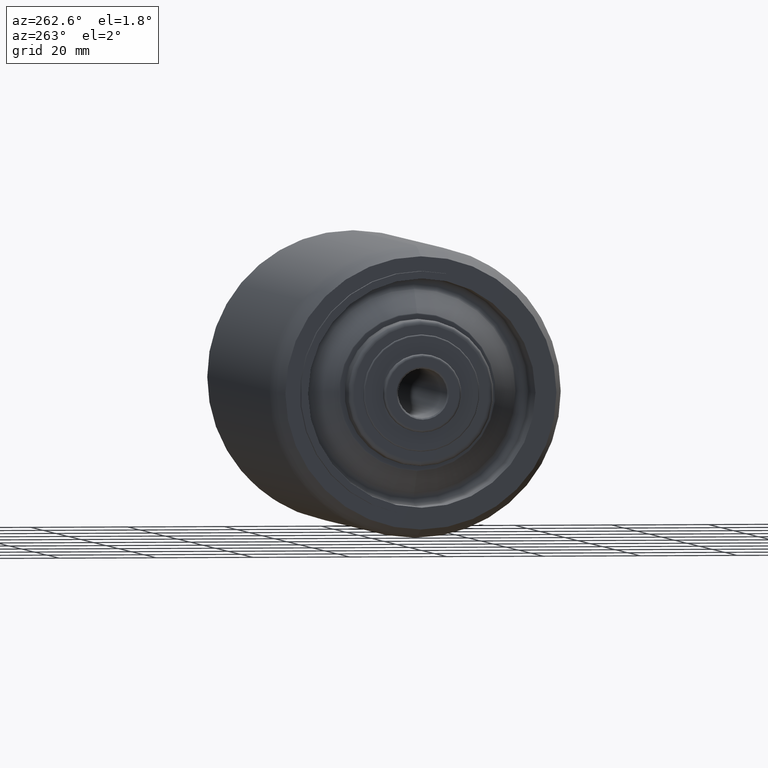
[diagram: clean part render]
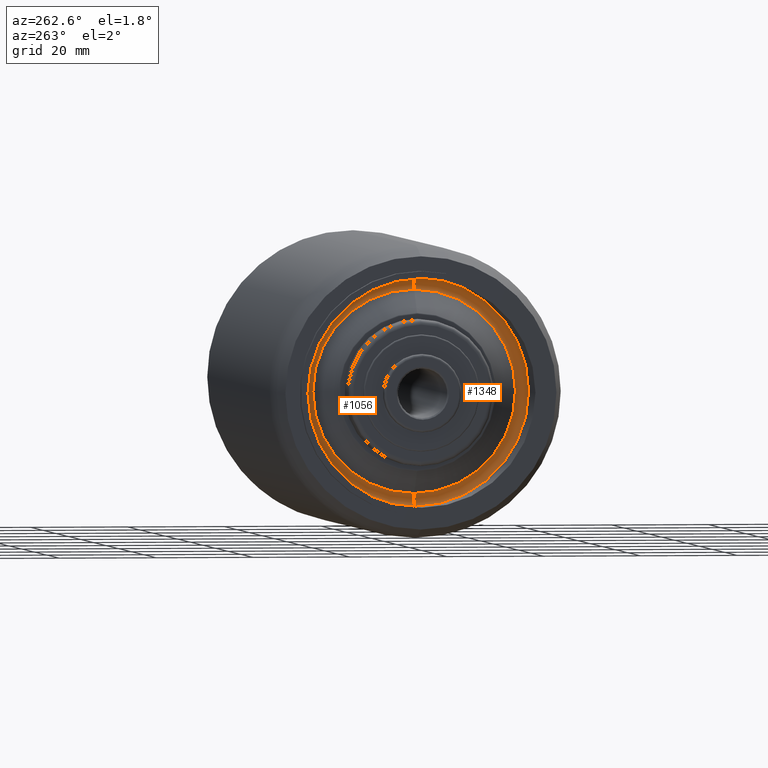
[diagram: same view with one multi-face feature highlighted, each face labeled with its STEP entity id]
A machine part, auxiliary view. The highlighted faces form ONE feature: a constant-radius fillet chain: 2 tangent blend faces with common blend radius 1.5 mm. The faces share edges in the B-rep.
Their STEP definitions:
[1] entity #1348 (Torus):
#23 = EDGE_LOOP ( 'NONE', ( #707, #1121, #1264, #1576 ) ) ;
#52 = DIRECTION ( 'NONE',  ( 0.0000000000000000000, 0.0000000000000000000, 1.000000000000000000 ) ) ;
#80 = AXIS2_PLACEMENT_3D ( 'NONE', #1416, #516, #1385 ) ;
#159 = AXIS2_PLACEMENT_3D ( 'NONE', #961, #1855, #966 ) ;
#175 = AXIS2_PLACEMENT_3D ( 'NONE', #1286, #661, #1274 ) ;
#218 = DIRECTION ( 'NONE',  ( 0.0000000000000000000, 0.0000000000000000000, 1.000000000000000000 ) ) ;
#395 = EDGE_CURVE ( 'NONE', #1574, #1657, #1742, .T. ) ;
#406 = CARTESIAN_POINT ( 'NONE',  ( -49.00000000000000000, 2.877919977996279926E-15, -23.50000000000000000 ) ) ;
#423 = VERTEX_POINT ( 'NONE', #633 ) ;
#516 = DIRECTION ( 'NONE',  ( -1.000000000000000000, -0.0000000000000000000, -0.0000000000000000000 ) ) ;
#524 = CIRCLE ( 'NONE', #159, 1.499999999999997780 ) ;
#559 = CARTESIAN_POINT ( 'NONE',  ( -49.00000000000000000, 0.0000000000000000000, 23.50000000000000000 ) ) ;
#633 = CARTESIAN_POINT ( 'NONE',  ( -47.93933982822019146, 2.564329549688852040E-15, 20.93933982822017015 ) ) ;
#661 = DIRECTION ( 'NONE',  ( 0.0000000000000000000, -1.000000000000000000, 0.0000000000000000000 ) ) ;
#707 = ORIENTED_EDGE ( 'NONE', *, *, #1392, .F. ) ;
#824 = CARTESIAN_POINT ( 'NONE',  ( -47.93933982822019146, 0.0000000000000000000, 0.0000000000000000000 ) ) ;
#847 = CIRCLE ( 'NONE', #1510, 20.93933982822017015 ) ;
#961 = CARTESIAN_POINT ( 'NONE',  ( -49.00000000000000000, 2.694222958124176809E-15, -22.00000000000000000 ) ) ;
#966 = DIRECTION ( 'NONE',  ( 0.0000000000000000000, -1.224646799147352221E-16, 1.000000000000000000 ) ) ;
#968 = FACE_OUTER_BOUND ( 'NONE', #23, .T. ) ;
#971 = EDGE_CURVE ( 'NONE', #1551, #1574, #524, .T. ) ;
#975 = AXIS2_PLACEMENT_3D ( 'NONE', #1410, #1840, #52 ) ;
#985 = EDGE_CURVE ( 'NONE', #423, #1657, #1654, .T. ) ;
#1121 = ORIENTED_EDGE ( 'NONE', *, *, #971, .T. ) ;
#1264 = ORIENTED_EDGE ( 'NONE', *, *, #395, .T. ) ;
#1274 = DIRECTION ( 'NONE',  ( 0.0000000000000000000, 0.0000000000000000000, -1.000000000000000000 ) ) ;
#1286 = CARTESIAN_POINT ( 'NONE',  ( -49.00000000000000000, 0.0000000000000000000, 22.00000000000000000 ) ) ;
#1348 = ADVANCED_FACE ( 'NONE', ( #968 ), #1732, .F. ) ;
#1385 = DIRECTION ( 'NONE',  ( 0.0000000000000000000, 0.0000000000000000000, 1.000000000000000000 ) ) ;
#1392 = EDGE_CURVE ( 'NONE', #1551, #423, #847, .T. ) ;
#1410 = CARTESIAN_POINT ( 'NONE',  ( -49.00000000000000000, 0.0000000000000000000, 0.0000000000000000000 ) ) ;
#1416 = CARTESIAN_POINT ( 'NONE',  ( -49.00000000000000000, 0.0000000000000000000, 0.0000000000000000000 ) ) ;
#1510 = AXIS2_PLACEMENT_3D ( 'NONE', #824, #1875, #218 ) ;
#1551 = VERTEX_POINT ( 'NONE', #1891 ) ;
#1574 = VERTEX_POINT ( 'NONE', #406 ) ;
#1576 = ORIENTED_EDGE ( 'NONE', *, *, #985, .F. ) ;
#1654 = CIRCLE ( 'NONE', #175, 1.499999999999997780 ) ;
#1657 = VERTEX_POINT ( 'NONE', #559 ) ;
#1732 = TOROIDAL_SURFACE ( 'NONE', #80, 22.00000000000000000, 1.499999999999998002 ) ;
#1742 = CIRCLE ( 'NONE', #975, 23.50000000000000000 ) ;
#1840 = DIRECTION ( 'NONE',  ( -1.000000000000000000, -0.0000000000000000000, -0.0000000000000000000 ) ) ;
#1855 = DIRECTION ( 'NONE',  ( -0.0000000000000000000, 1.000000000000000000, 1.224646799147353207E-16 ) ) ;
#1875 = DIRECTION ( 'NONE',  ( -1.000000000000000000, -0.0000000000000000000, -0.0000000000000000000 ) ) ;
#1891 = CARTESIAN_POINT ( 'NONE',  ( -47.93933982822019146, 0.0000000000000000000, -20.93933982822017015 ) ) ;
[2] entity #1056 (Torus):
#50 = EDGE_CURVE ( 'NONE', #1657, #1574, #1780, .T. ) ;
#132 = CARTESIAN_POINT ( 'NONE',  ( -49.00000000000000000, 0.0000000000000000000, 0.0000000000000000000 ) ) ;
#159 = AXIS2_PLACEMENT_3D ( 'NONE', #961, #1855, #966 ) ;
#175 = AXIS2_PLACEMENT_3D ( 'NONE', #1286, #661, #1274 ) ;
#323 = CARTESIAN_POINT ( 'NONE',  ( -49.00000000000000000, 0.0000000000000000000, 0.0000000000000000000 ) ) ;
#370 = AXIS2_PLACEMENT_3D ( 'NONE', #323, #1091, #474 ) ;
#406 = CARTESIAN_POINT ( 'NONE',  ( -49.00000000000000000, 2.877919977996279926E-15, -23.50000000000000000 ) ) ;
#423 = VERTEX_POINT ( 'NONE', #633 ) ;
#429 = DIRECTION ( 'NONE',  ( 0.0000000000000000000, 0.0000000000000000000, 1.000000000000000000 ) ) ;
#436 = FACE_OUTER_BOUND ( 'NONE', #703, .T. ) ;
#449 = DIRECTION ( 'NONE',  ( 0.0000000000000000000, 0.0000000000000000000, 1.000000000000000000 ) ) ;
#474 = DIRECTION ( 'NONE',  ( 0.0000000000000000000, 0.0000000000000000000, 1.000000000000000000 ) ) ;
#524 = CIRCLE ( 'NONE', #159, 1.499999999999997780 ) ;
#544 = CIRCLE ( 'NONE', #787, 20.93933982822017015 ) ;
#559 = CARTESIAN_POINT ( 'NONE',  ( -49.00000000000000000, 0.0000000000000000000, 23.50000000000000000 ) ) ;
#593 = DIRECTION ( 'NONE',  ( -1.000000000000000000, -0.0000000000000000000, -0.0000000000000000000 ) ) ;
#633 = CARTESIAN_POINT ( 'NONE',  ( -47.93933982822019146, 2.564329549688852040E-15, 20.93933982822017015 ) ) ;
#661 = DIRECTION ( 'NONE',  ( 0.0000000000000000000, -1.000000000000000000, 0.0000000000000000000 ) ) ;
#703 = EDGE_LOOP ( 'NONE', ( #960, #769, #1316, #1695 ) ) ;
#769 = ORIENTED_EDGE ( 'NONE', *, *, #1029, .F. ) ;
#787 = AXIS2_PLACEMENT_3D ( 'NONE', #1631, #1929, #429 ) ;
#800 = TOROIDAL_SURFACE ( 'NONE', #1606, 22.00000000000000000, 1.499999999999998002 ) ;
#960 = ORIENTED_EDGE ( 'NONE', *, *, #971, .F. ) ;
#961 = CARTESIAN_POINT ( 'NONE',  ( -49.00000000000000000, 2.694222958124176809E-15, -22.00000000000000000 ) ) ;
#966 = DIRECTION ( 'NONE',  ( 0.0000000000000000000, -1.224646799147352221E-16, 1.000000000000000000 ) ) ;
#971 = EDGE_CURVE ( 'NONE', #1551, #1574, #524, .T. ) ;
#985 = EDGE_CURVE ( 'NONE', #423, #1657, #1654, .T. ) ;
#1029 = EDGE_CURVE ( 'NONE', #423, #1551, #544, .T. ) ;
#1056 = ADVANCED_FACE ( 'NONE', ( #436 ), #800, .F. ) ;
#1091 = DIRECTION ( 'NONE',  ( -1.000000000000000000, -0.0000000000000000000, -0.0000000000000000000 ) ) ;
#1274 = DIRECTION ( 'NONE',  ( 0.0000000000000000000, 0.0000000000000000000, -1.000000000000000000 ) ) ;
#1286 = CARTESIAN_POINT ( 'NONE',  ( -49.00000000000000000, 0.0000000000000000000, 22.00000000000000000 ) ) ;
#1316 = ORIENTED_EDGE ( 'NONE', *, *, #985, .T. ) ;
#1551 = VERTEX_POINT ( 'NONE', #1891 ) ;
#1574 = VERTEX_POINT ( 'NONE', #406 ) ;
#1606 = AXIS2_PLACEMENT_3D ( 'NONE', #132, #593, #449 ) ;
#1631 = CARTESIAN_POINT ( 'NONE',  ( -47.93933982822019146, 0.0000000000000000000, 0.0000000000000000000 ) ) ;
#1654 = CIRCLE ( 'NONE', #175, 1.499999999999997780 ) ;
#1657 = VERTEX_POINT ( 'NONE', #559 ) ;
#1695 = ORIENTED_EDGE ( 'NONE', *, *, #50, .T. ) ;
#1780 = CIRCLE ( 'NONE', #370, 23.50000000000000000 ) ;
#1855 = DIRECTION ( 'NONE',  ( -0.0000000000000000000, 1.000000000000000000, 1.224646799147353207E-16 ) ) ;
#1891 = CARTESIAN_POINT ( 'NONE',  ( -47.93933982822019146, 0.0000000000000000000, -20.93933982822017015 ) ) ;
#1929 = DIRECTION ( 'NONE',  ( -1.000000000000000000, -0.0000000000000000000, -0.0000000000000000000 ) ) ;